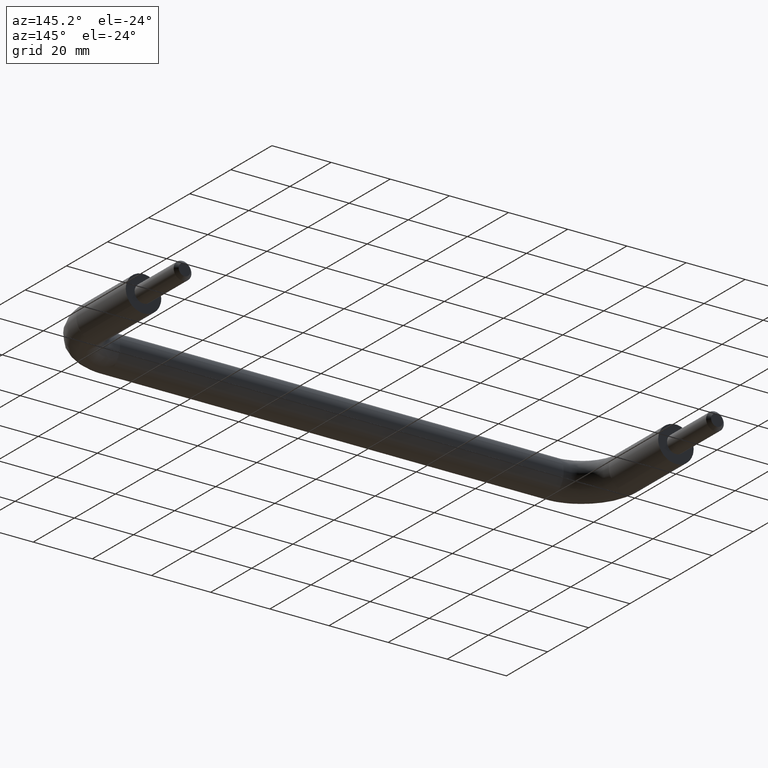
[diagram: clean part render]
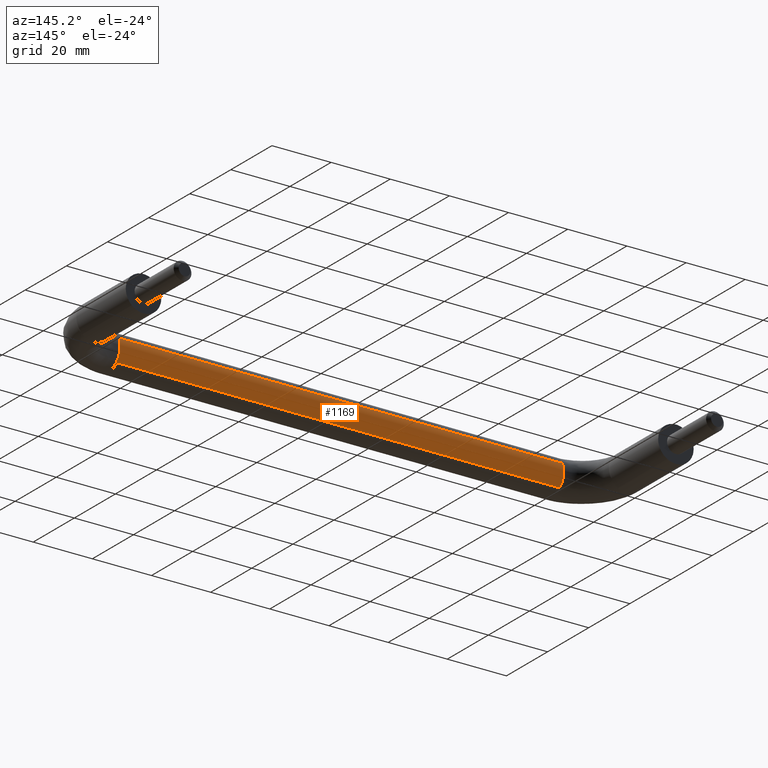
[diagram: same view with one face highlighted and labeled with its STEP entity id]
A machine part, auxiliary view. The second image highlights one B-rep face of the part: STEP entity #1169.
In plain terms, the highlighted face is a freeform B-spline surface patch.
Its self-contained STEP definition (entity closure, byte-faithful):
#950=CARTESIAN_POINT('',(165.0,-33.626367044200506,2.669095138121863));
#951=VERTEX_POINT('',#950);
#969=CARTESIAN_POINT('',(14.999999999875209,-33.626367044269713,2.669095138086312));
#970=VERTEX_POINT('',#969);
#971=CARTESIAN_POINT('',(14.999999999875209,-33.626367044269713,2.669095138086312));
#972=CARTESIAN_POINT('',(165.0,-33.626367044200506,2.669095138121863));
#973=QUASI_UNIFORM_CURVE('',1,(#971,#972),.UNSPECIFIED.,.F.,.U.);
#974=EDGE_CURVE('',#970,#951,#973,.T.);
#1023=CARTESIAN_POINT('',(15.0,-34.869873054902463,-4.352246709158238));
#1024=VERTEX_POINT('',#1023);
#1040=CARTESIAN_POINT('',(165.000000000420700,-34.869874496015584,-4.352248076460115));
#1041=VERTEX_POINT('',#1040);
#1042=CARTESIAN_POINT('',(15.0,-34.869873054902463,-4.352246709158238));
#1043=CARTESIAN_POINT('',(165.000000000420700,-34.869874496015584,-4.352248076460115));
#1044=QUASI_UNIFORM_CURVE('',1,(#1042,#1043),.UNSPECIFIED.,.F.,.U.);
#1045=EDGE_CURVE('',#1024,#1041,#1044,.T.);
#1095=CARTESIAN_POINT('',(11.249999998756790,-34.869872545837481,-4.352246226073724));
#1096=CARTESIAN_POINT('',(11.249999998756790,-31.654449898810537,-1.300924067032585));
#1097=CARTESIAN_POINT('',(11.249999998756788,-33.626367044185031,2.669095138090656));
#1098=CARTESIAN_POINT('',(168.843750001397410,-34.869872545837453,-4.352246226073724));
#1099=CARTESIAN_POINT('',(168.843750001397440,-31.654449898810494,-1.300924067032585));
#1100=CARTESIAN_POINT('',(168.843750001397410,-33.626367044185002,2.669095138090656));
#1108=(BOUNDED_SURFACE()B_SPLINE_SURFACE(2,1,((#1095,#1098),(#1096,#1099),(#1097,#1100)),.UNSPECIFIED.,.F.,.F.,.U.)B_SPLINE_SURFACE_WITH_KNOTS((3,3),(2,2),(0.0,7.898692343319879),(0.0,157.593750002640690),.UNSPECIFIED.)GEOMETRIC_REPRESENTATION_ITEM()RATIONAL_B_SPLINE_SURFACE(((1.0,1.0),(0.765685424949238,0.765685424949238),(0.906274169979695,0.906274169979695)))REPRESENTATION_ITEM('')SURFACE());
#1109=CARTESIAN_POINT('',(165.0,-33.0,0.0));
#1110=VERTEX_POINT('',#1109);
#1111=CARTESIAN_POINT('',(165.0,-33.0,0.0));
#1112=CARTESIAN_POINT('',(165.000000000000060,-33.0,1.408043576856816));
#1113=CARTESIAN_POINT('',(165.0,-33.626367044200514,2.669095138121864));
#1121=(BOUNDED_CURVE()B_SPLINE_CURVE(2,(#1111,#1112,#1113),.UNSPECIFIED.,.F.,.U.)B_SPLINE_CURVE_WITH_KNOTS((3,3),(0.500000000000000,0.575619190624199),.UNSPECIFIED.)CURVE()GEOMETRIC_REPRESENTATION_ITEM()RATIONAL_B_SPLINE_CURVE((1.0,0.911406607416042,0.876408099966890))REPRESENTATION_ITEM(''));
#1122=EDGE_CURVE('',#1110,#951,#1121,.T.);
#1123=ORIENTED_EDGE('',*,*,#1122,.F.);
#1124=CARTESIAN_POINT('',(165.000000000420670,-34.869874496015569,-4.352248076460115));
#1125=CARTESIAN_POINT('',(165.0,-33.000000000000007,-2.577805027836772));
#1126=CARTESIAN_POINT('',(165.0,-33.0,0.0));
#1134=(BOUNDED_CURVE()B_SPLINE_CURVE(2,(#1124,#1125,#1126),.UNSPECIFIED.,.F.,.U.)B_SPLINE_CURVE_WITH_KNOTS((3,3),(0.371049459051509,0.500000000000000),.UNSPECIFIED.)CURVE()GEOMETRIC_REPRESENTATION_ITEM()RATIONAL_B_SPLINE_CURVE((0.853699666375974,0.848925043975442,1.0))REPRESENTATION_ITEM(''));
#1135=EDGE_CURVE('',#1041,#1110,#1134,.T.);
#1136=ORIENTED_EDGE('',*,*,#1135,.F.);
#1137=ORIENTED_EDGE('',*,*,#1045,.F.);
#1138=CARTESIAN_POINT('',(15.0,-33.0,0.0));
#1139=VERTEX_POINT('',#1138);
#1140=CARTESIAN_POINT('',(15.000000000000004,-34.869873054902456,-4.352246709158237));
#1141=CARTESIAN_POINT('',(15.0,-33.0,-2.577804267138424));
#1142=CARTESIAN_POINT('',(15.0,-33.0,0.0));
#1150=(BOUNDED_CURVE()B_SPLINE_CURVE(2,(#1140,#1141,#1142),.UNSPECIFIED.,.F.,.U.)B_SPLINE_CURVE_WITH_KNOTS((3,3),(0.371049491355407,0.500000000000000),.UNSPECIFIED.)CURVE()GEOMETRIC_REPRESENTATION_ITEM()RATIONAL_B_SPLINE_CURVE((0.853699663983766,0.848925081821813,1.0))REPRESENTATION_ITEM(''));
#1151=EDGE_CURVE('',#1024,#1139,#1150,.T.);
#1152=ORIENTED_EDGE('',*,*,#1151,.T.);
#1153=CARTESIAN_POINT('',(15.0,-33.0,0.0));
#1154=CARTESIAN_POINT('',(15.0,-33.0,1.408043576813630));
#1155=CARTESIAN_POINT('',(14.999999999875211,-33.626367044269706,2.669095138086313));
#1163=(BOUNDED_CURVE()B_SPLINE_CURVE(2,(#1153,#1154,#1155),.UNSPECIFIED.,.F.,.U.)B_SPLINE_CURVE_WITH_KNOTS((3,3),(0.500000000000000,0.575619190622085),.UNSPECIFIED.)CURVE()GEOMETRIC_REPRESENTATION_ITEM()RATIONAL_B_SPLINE_CURVE((1.0,0.911406607418518,0.876408099968846))REPRESENTATION_ITEM(''));
#1164=EDGE_CURVE('',#1139,#970,#1163,.T.);
#1165=ORIENTED_EDGE('',*,*,#1164,.T.);
#1166=ORIENTED_EDGE('',*,*,#974,.T.);
#1167=EDGE_LOOP('',(#1123,#1136,#1137,#1152,#1165,#1166));
#1168=FACE_OUTER_BOUND('',#1167,.T.);
#1169=ADVANCED_FACE('',(#1168),#1108,.T.);